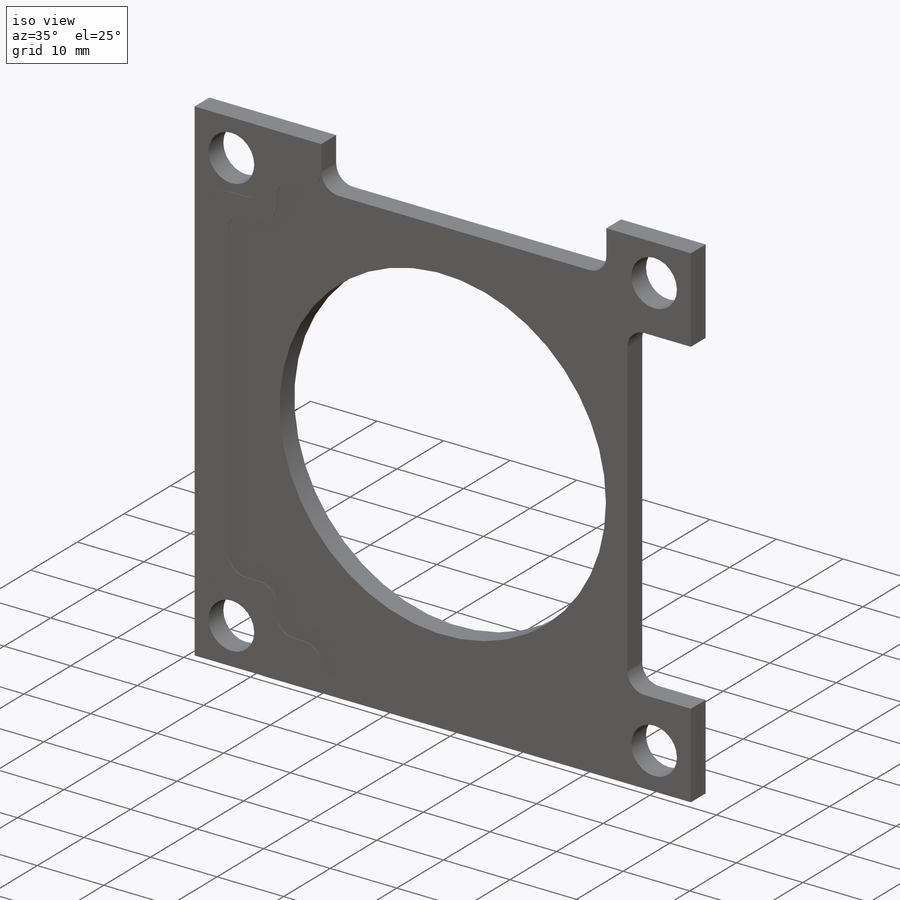
[diagram: iso view]
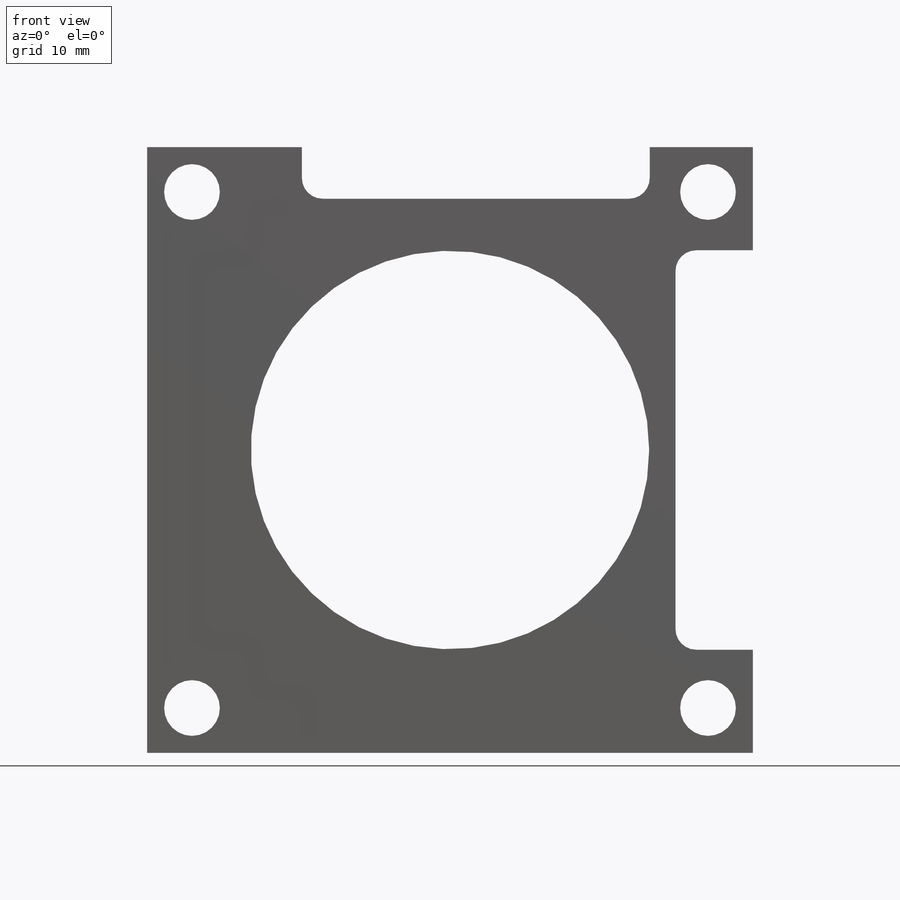
[diagram: front view]
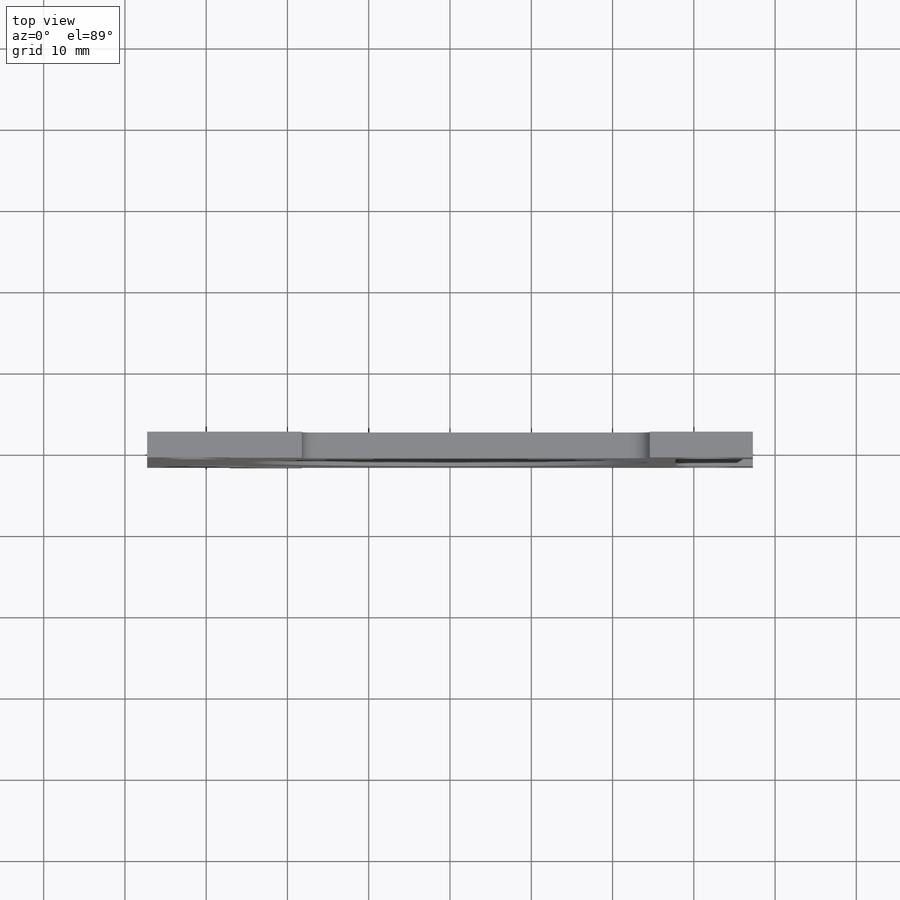
[diagram: top view]
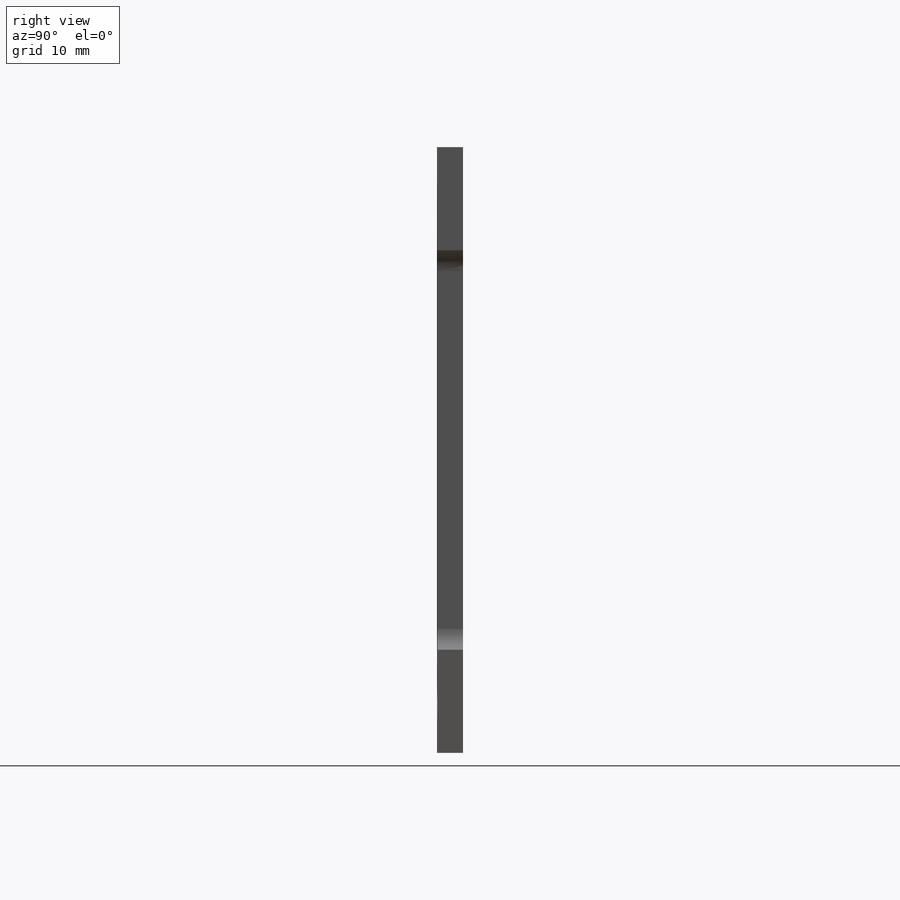
[diagram: right view]
SOLIDWORKS PART (.sldprt)
format: sldprt  version: not decoded by parser v0  size: 436,224 bytes
history: native  units: mm
features: sketch x9, fillet x4, cut_extrude x3, mirror x3, extrude x2, hole x2, material x1 (+13 scaffold rows collapsed)
feature tree (37):
  scaffold x13  (default folders/planes/origin — collapsed)
  material  "Material <not specified>"
  sketch  "Sketch1"  dims[D5=49.022mm D6=88.9mm D1=74.549mm D2=74.549mm D3=37.2745mm D4=37.2745mm]
  extrude  "Boss-Extrude1"  Depth=1.5748mm
  sketch  "Sketch2"  dims[c1.D3=6.858mm c1.D1=~84.128774mm c2.D1=45.0deg c2.D2=31.75mm c2.D3=31.75mm]
  cut_extrude  "Cut-Extrude1"  [1 undecoded]
  sketch  "Sketch20"  dims[c1.D1=2.54mm c1.D2=2.54mm c1.D3=2.54mm c1.D4=10.16mm c1.D5=12.7mm c1.D6=10.16mm c2.D5=6.35mm]
  extrude  "Boss-Extrude2"  Depth=0.0508mm
  fillet  "Fillet3"  Radius=2.54mm
  mirror  "Mirror3"
  mirror  "Mirror1"
  mirror  "Mirror2"
  sketch  "Sketch14"  dims[c1.D1=19.05mm c1.D2=19.05mm c1.D3=6.35mm c1.D4=74.549mm c2.D2=12.7mm]
  cut_extrude  "Cut-Extrude2"  [1 undecoded]
  fillet  "Fillet1"  Radius=2.54mm
  sketch  "Sketch17"  dims[D1=12.7mm D2=12.7mm .25=~8.217981mm D3=9.525mm]
  cut_extrude  "Cut-Extrude3"  [1 undecoded]
  fillet  "Fillet2"  Radius=2.54mm
  fillet  "Fillet5"  Radius=2.54mm
  hole  "CSK for #0 Flat Head Machine Screw (100)1"  Diameter=1.778mm Depth=3.213125mm
  sketch  "Sketch22"  dims[D1=19.05mm D2=27.94mm D3=27.94mm D4=19.05mm]
  sketch  "Sketch21"  dims[hole-wizard template sketch: 54 standard entries collapsed; hole parameters kept: c17.Thru Hole Dia.=1.778mm c17.Thru Hole Depth=~3.213125mm c17.Near C'Sink Dia.=3.0226mm c17.D4=~3.666174mm c17.Near C'Sink Angle=100.0deg]
  hole  "CBORE for #2 Button Head Cap Screw2"  Diameter=2.4384mm Depth=3.213125mm
  sketch  "Sketch26"  dims[D1=19.05mm D2=27.94mm D3=19.05mm D4=27.94mm]
  sketch  "Sketch25"  dims[hole-wizard template sketch: 41 standard entries collapsed; hole parameters kept: c12.Thru Hole Dia.=2.4384mm c12.Thru Hole Depth=~3.213125mm c12.C'Bore Dia.=~5.15874mm c12.C'Bore Depth=1.27mm]
decode coverage: 17 of 23 modeling features carry decoded parameters
note: ~ marks probable driven/reference dimensions
note: 3 parameter values undecoded
summary: no parameter record found for 3 features
note: suppression state not decoded; provenance and decode notes live in map.json
